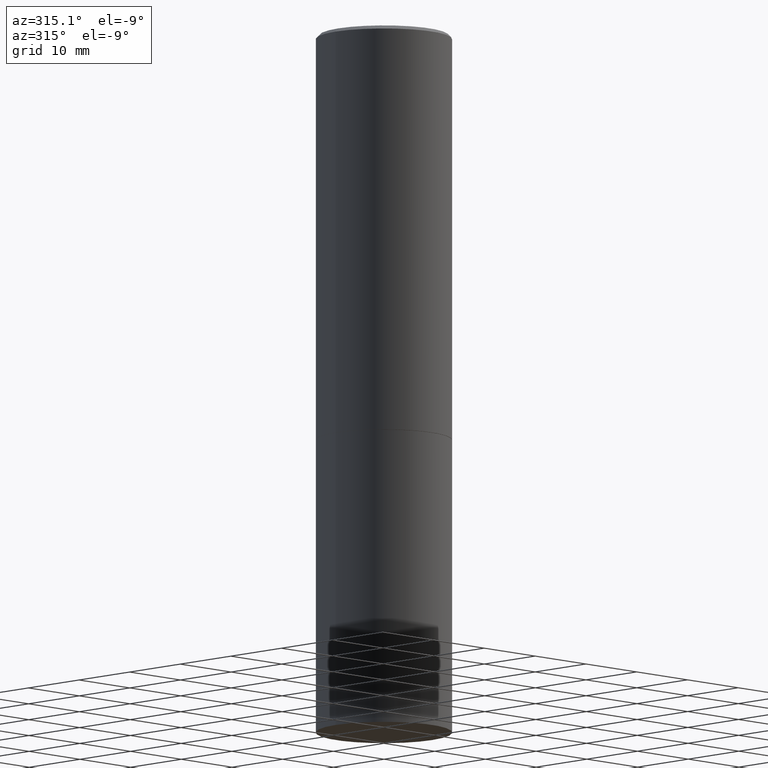
[diagram: clean part render]
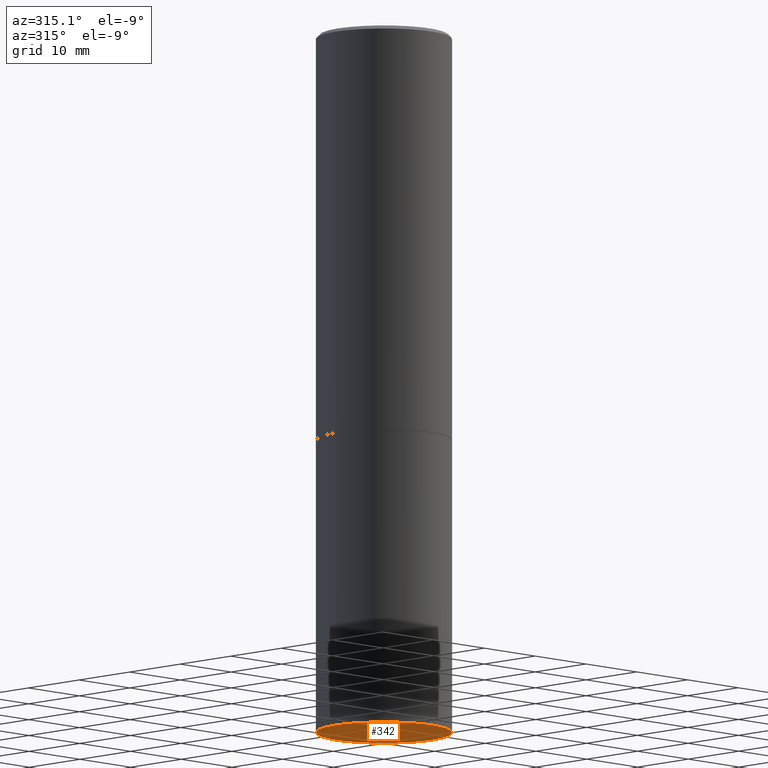
[diagram: same view with one face highlighted and labeled with its STEP entity id]
A machine part, auxiliary view. The second image highlights one B-rep face of the part: STEP entity #342.
In plain terms, the highlighted planar face has unit normal (0, -0, -1).
Its self-contained STEP definition (entity closure, byte-faithful):
#9 = EDGE_LOOP ( 'NONE', ( #293, #274 ) ) ;
#25 = AXIS2_PLACEMENT_3D ( 'NONE', #64, #227, #197 ) ;
#47 = FACE_OUTER_BOUND ( 'NONE', #9, .T. ) ;
#48 = DIRECTION ( 'NONE',  ( -2.445468806185136597E-29, 3.491481338843145583E-15, 1.000000000000000000 ) ) ;
#58 = CARTESIAN_POINT ( 'NONE',  ( 0.3750000000000000555, -1.614810119214954068E-14, -3.875000000000000000 ) ) ;
#64 = CARTESIAN_POINT ( 'NONE',  ( 9.476191623967404313E-29, -1.352949018801718908E-14, -3.875000000000000000 ) ) ;
#71 = CARTESIAN_POINT ( 'NONE',  ( 9.476191623967404313E-29, -1.352949018801718908E-14, -3.875000000000000000 ) ) ;
#99 = DIRECTION ( 'NONE',  ( -1.000000000000000000, 6.982962677686265922E-15, -4.876176775795935793E-29 ) ) ;
#133 = CARTESIAN_POINT ( 'NONE',  ( -0.3750000000000000555, -8.028126341106757280E-15, -3.875000000000000000 ) ) ;
#138 = CIRCLE ( 'NONE', #146, 0.3750000000000000555 ) ;
#146 = AXIS2_PLACEMENT_3D ( 'NONE', #71, #48, #181 ) ;
#166 = AXIS2_PLACEMENT_3D ( 'NONE', #251, #348, #99 ) ;
#181 = DIRECTION ( 'NONE',  ( 1.000000000000000000, -6.982962677686266711E-15, 0.000000000000000000 ) ) ;
#197 = DIRECTION ( 'NONE',  ( 1.000000000000000000, -6.982962677686266711E-15, 0.000000000000000000 ) ) ;
#209 = VERTEX_POINT ( 'NONE', #133 ) ;
#227 = DIRECTION ( 'NONE',  ( -2.445468806185136597E-29, 3.491481338843145583E-15, 1.000000000000000000 ) ) ;
#242 = VERTEX_POINT ( 'NONE', #58 ) ;
#251 = CARTESIAN_POINT ( 'NONE',  ( 2.618611004132444680E-15, 0.3749999999999865108, -3.875000000000001332 ) ) ;
#262 = EDGE_CURVE ( 'NONE', #242, #209, #338, .T. ) ;
#274 = ORIENTED_EDGE ( 'NONE', *, *, #314, .F. ) ;
#293 = ORIENTED_EDGE ( 'NONE', *, *, #262, .F. ) ;
#314 = EDGE_CURVE ( 'NONE', #209, #242, #138, .T. ) ;
#338 = CIRCLE ( 'NONE', #25, 0.3750000000000000555 ) ;
#342 = ADVANCED_FACE ( 'NONE', ( #47 ), #352, .T. ) ;
#348 = DIRECTION ( 'NONE',  ( 2.438088387897960049E-29, -3.491481338843145188E-15, -1.000000000000000000 ) ) ;
#352 = PLANE ( 'NONE',  #166 ) ;